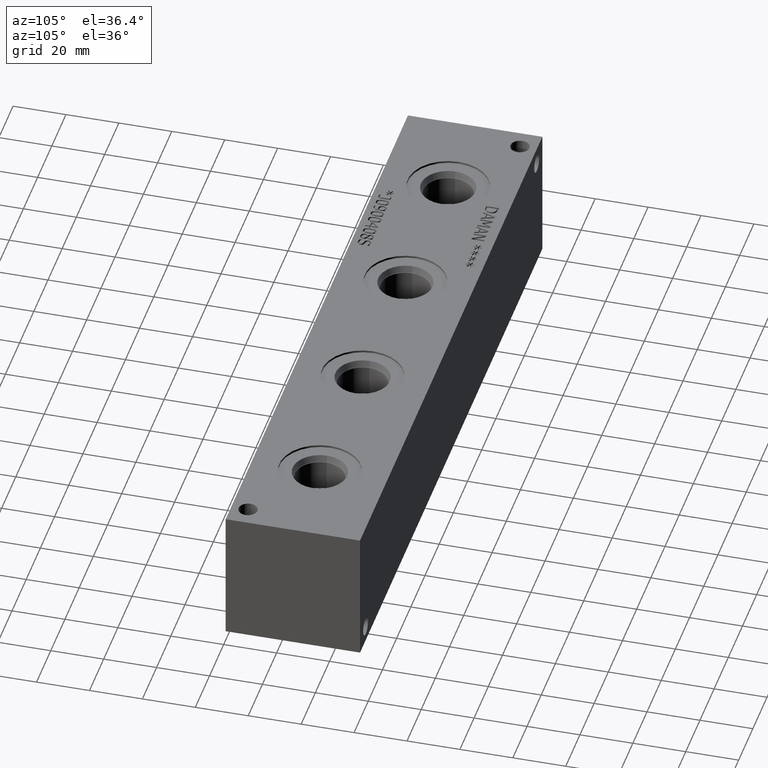
[diagram: clean part render]
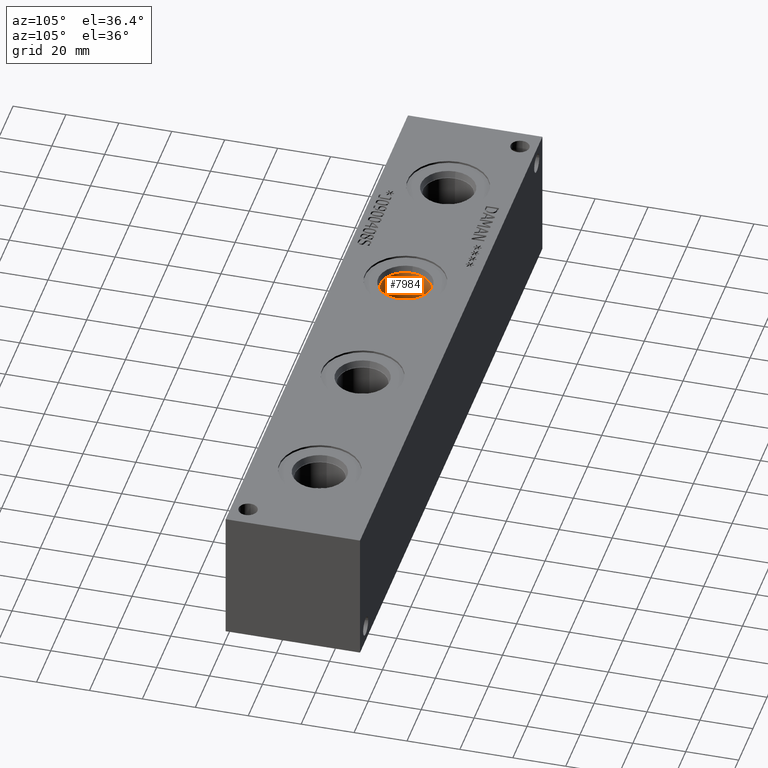
[diagram: same view with one face highlighted and labeled with its STEP entity id]
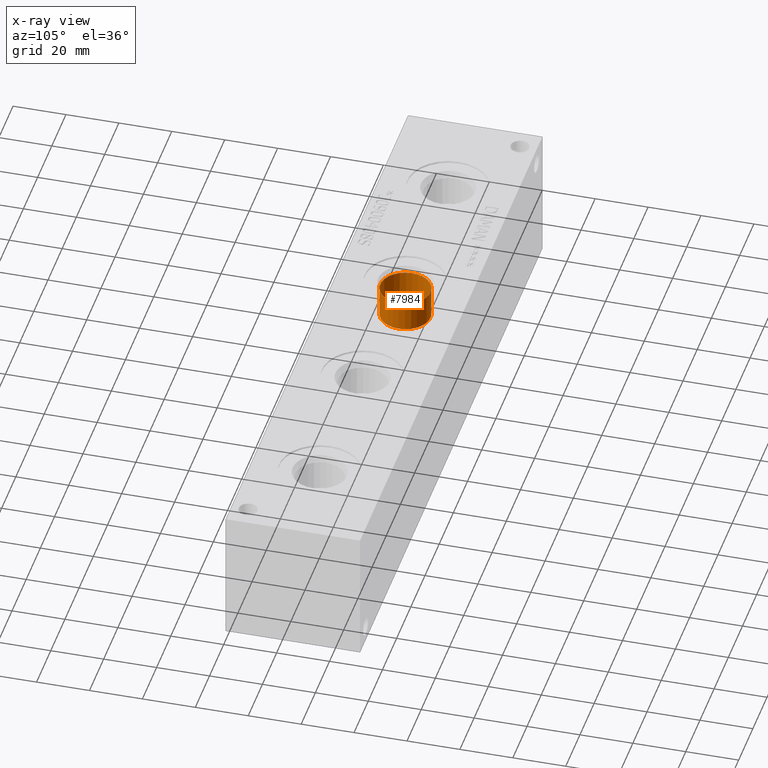
[diagram: x-ray of the same camera — body ghosted, the highlighted face saturated]
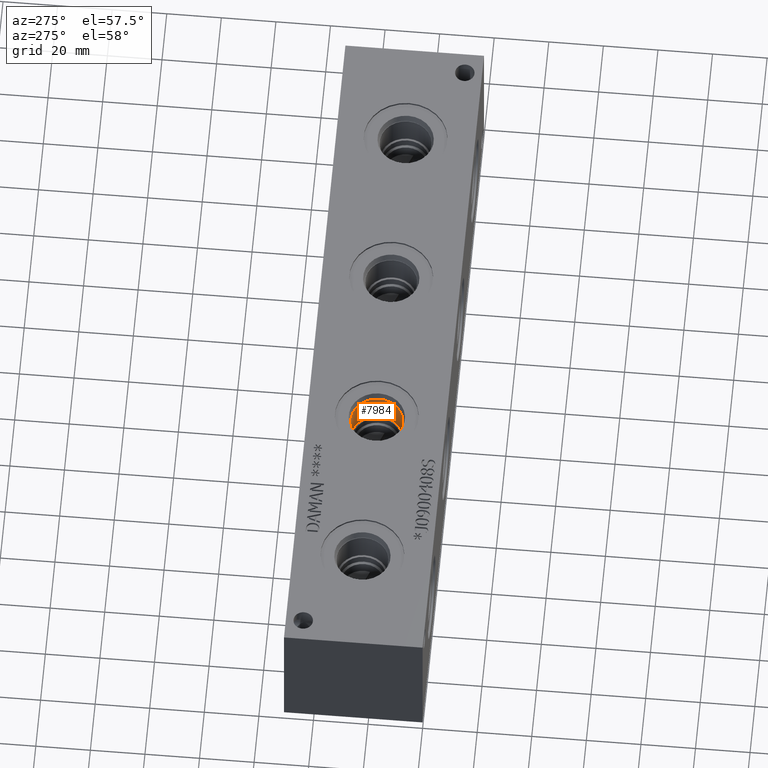
[diagram: same view with one face highlighted and labeled with its STEP entity id]
A machine part, auxiliary view. The second image highlights one B-rep face of the part: STEP entity #7984.
The next image is the same camera in x-ray: the body ghosted, the highlighted face saturated — about 0% of this face is hidden behind the body in this view.
A second angle (auxiliary view) of the same face is appended — the face is thin or edge-on in the first view.
In plain terms, the highlighted cylindrical surface (bore or boss wall) has radius 9.525 mm, axis along (0, 0, 1).
Its self-contained STEP definition (entity closure, byte-faithful):
#98=CYLINDRICAL_SURFACE('',#8437,9.525);
#237=CIRCLE('',#8435,9.525);
#238=CIRCLE('',#8436,9.525);
#239=CIRCLE('',#8438,9.525);
#939=FACE_OUTER_BOUND('',#1404,.T.);
#1404=EDGE_LOOP('',(#7003,#7004,#7005,#7006,#7007));
#2116=LINE('',#13942,#2809);
#2809=VECTOR('',#9994,9.525);
#3788=VERTEX_POINT('',#13935);
#3789=VERTEX_POINT('',#13936);
#3790=VERTEX_POINT('',#13940);
#4877=EDGE_CURVE('',#3788,#3789,#237,.T.);
#4878=EDGE_CURVE('',#3789,#3788,#238,.T.);
#4879=EDGE_CURVE('',#3790,#3790,#239,.T.);
#4880=EDGE_CURVE('',#3790,#3789,#2116,.T.);
#7003=ORIENTED_EDGE('',*,*,#4879,.F.);
#7004=ORIENTED_EDGE('',*,*,#4880,.T.);
#7005=ORIENTED_EDGE('',*,*,#4877,.F.);
#7006=ORIENTED_EDGE('',*,*,#4878,.F.);
#7007=ORIENTED_EDGE('',*,*,#4880,.F.);
#7984=ADVANCED_FACE('',(#939),#98,.F.);
#8435=AXIS2_PLACEMENT_3D('',#13937,#9986,#9987);
#8436=AXIS2_PLACEMENT_3D('',#13938,#9988,#9989);
#8437=AXIS2_PLACEMENT_3D('',#13939,#9990,#9991);
#8438=AXIS2_PLACEMENT_3D('',#13941,#9992,#9993);
#9986=DIRECTION('center_axis',(0.,0.,1.));
#9987=DIRECTION('ref_axis',(1.,0.,0.));
#9988=DIRECTION('center_axis',(0.,0.,1.));
#9989=DIRECTION('ref_axis',(1.,0.,0.));
#9990=DIRECTION('center_axis',(0.,0.,1.));
#9991=DIRECTION('ref_axis',(1.,0.,0.));
#9992=DIRECTION('center_axis',(0.,0.,-1.));
#9993=DIRECTION('ref_axis',(1.,0.,0.));
#9994=DIRECTION('',(0.,0.,-1.));
#13935=CARTESIAN_POINT('',(107.95,25.4,35.7378));
#13936=CARTESIAN_POINT('',(88.9,25.4,35.7378));
#13937=CARTESIAN_POINT('Origin',(98.425,25.4,35.7378));
#13938=CARTESIAN_POINT('Origin',(98.425,25.4,35.7378));
#13939=CARTESIAN_POINT('Origin',(98.425,25.4,43.2689));
#13940=CARTESIAN_POINT('',(88.9,25.4,47.3964));
#13941=CARTESIAN_POINT('Origin',(98.425,25.4,47.3964));
#13942=CARTESIAN_POINT('',(88.9,25.4,43.2689));